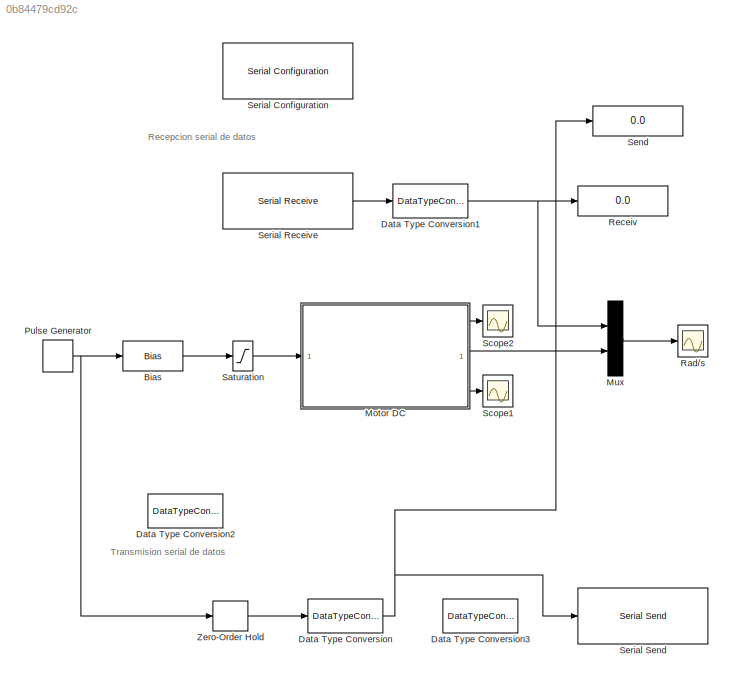
MODEL slx_0b84479cd92c
KIND model
CONFIG AbsTol = auto
CONFIG EnableMultiTasking = off
CONFIG FixedStep = auto
CONFIG MaxStep = auto
CONFIG MinStep = auto
CONFIG RelTol = 1e-3
CONFIG SampleTimeConstraint = Unconstrained
CONFIG SolverName = VariableStepAuto
CONFIG StartTime = 0.0
CONFIG StopTime = 10
BLOCK [Bias] Bias
  Bias = -8+Vm
  SaturateOnIntegerOverflow = off
BLOCK [DataTypeConversion] Data Type Conversion
  OutDataTypeStr = single
  RndMeth = Floor
  SaturateOnIntegerOverflow = off
BLOCK [DataTypeConversion] Data Type Conversion1
  OutDataTypeStr = double
  RndMeth = Floor
  SaturateOnIntegerOverflow = off
BLOCK [DataTypeConversion] Data Type Conversion2
  RndMeth = Floor
  SaturateOnIntegerOverflow = off
BLOCK [DataTypeConversion] Data Type Conversion3
  OutDataTypeStr = uint32
  RndMeth = Floor
  SaturateOnIntegerOverflow = off
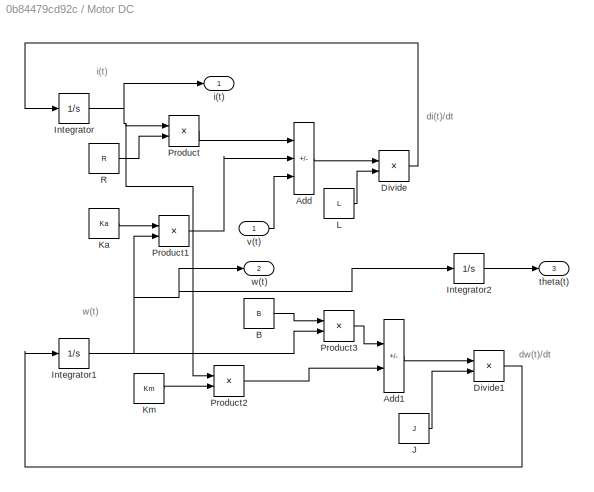
BLOCK [SubSystem] Motor DC
BLOCK [Sum] Motor DC/Add
  IconShape = rectangular
  Inputs = --+
BLOCK [Sum] Motor DC/Add1
  IconShape = rectangular
  Inputs = -+
BLOCK [Constant] Motor DC/B
  Value = B
BLOCK [Product] Motor DC/Divide
  Inputs = */
BLOCK [Product] Motor DC/Divide1
  Inputs = */
BLOCK [Integrator] Motor DC/Integrator
BLOCK [Integrator] Motor DC/Integrator1
BLOCK [Integrator] Motor DC/Integrator2
BLOCK [Constant] Motor DC/J
  Value = J
BLOCK [Constant] Motor DC/Ka
  Value = Ka
BLOCK [Constant] Motor DC/Km
  Value = Km
BLOCK [Constant] Motor DC/L
  Value = L
BLOCK [Product] Motor DC/Product
BLOCK [Product] Motor DC/Product1
BLOCK [Product] Motor DC/Product2
BLOCK [Product] Motor DC/Product3
BLOCK [Constant] Motor DC/R
  Value = R
BLOCK [Outport] Motor DC/i(t)
  VectorParamsAs1DForOutWhenUnconnected = off
BLOCK [Outport] Motor DC/theta(t)
  Port = 3
  VectorParamsAs1DForOutWhenUnconnected = off
BLOCK [Inport] Motor DC/v(t)
BLOCK [Outport] Motor DC/w(t)
  Port = 2
  VectorParamsAs1DForOutWhenUnconnected = off
BLOCK [Mux] Mux
  DisplayOption = bar
  Inputs = 2
BLOCK [DiscretePulseGenerator] Pulse Generator
  Amplitude = 8
  Period = 4
  PhaseDelay = 2
  PulseType = Time based
  PulseWidth = 50
BLOCK [Scope] Rad//s
  Floating = off
  NumInputPorts = 1
  ScopeSpecificationString = Simulink.scopes.TimeScopeBlockCfg('CurrentConfiguration', extmgr.ConfigurationSet(extmgr.Configuration('Core','General UI',true),extmgr.Configuration('Core','Source UI',true),extmgr.Configuration('Sources','WiredSimulink',true,'DataLoggingVariableName','ScopeData1'),extmgr.Configuration('Visuals','Time Domain',true,'SerializedDisplays',{struct('MinYLimReal','-14.74016','MaxYLimReal','59.1731','YLa...<+1834ch>
BLOCK [Display] Receiv
  Decimation = 1
BLOCK [Saturate] Saturation
  LowerLimit = 0
  UpperLimit = 12
BLOCK [Scope] Scope1
  Floating = off
  NumInputPorts = 1
  ScopeSpecificationString = Simulink.scopes.TimeScopeBlockCfg('CurrentConfiguration', extmgr.ConfigurationSet(extmgr.Configuration('Core','General UI',true),extmgr.Configuration('Core','Source UI',true),extmgr.Configuration('Sources','WiredSimulink',true,'DataLoggingVariableName','ScopeData1'),extmgr.Configuration('Visuals','Time Domain',true,'SerializedDisplays',{struct('MinYLimReal','-0.02451','MaxYLimReal','0.20996','YLab...<+1802ch>
BLOCK [Scope] Scope2
  Floating = off
  NumInputPorts = 1
  ScopeSpecificationString = Simulink.scopes.TimeScopeBlockCfg('CurrentConfiguration', extmgr.ConfigurationSet(extmgr.Configuration('Core','General UI',true),extmgr.Configuration('Core','Source UI',true),extmgr.Configuration('Sources','WiredSimulink',true,'DataLoggingVariableName','ScopeData1'),extmgr.Configuration('Visuals','Time Domain',true,'SerializedDisplays',{struct('MinYLimReal','-0.02451','MaxYLimReal','0.20996','YLab...<+1802ch>
BLOCK [Display] Send
  Decimation = 1
BLOCK [Reference] Serial Configuration  REF=instrumentseriallib/Serial Configuration
  LibrarySourceBlock = instrumentlib/Serial Configuration
  Priority = -200000
  SourceBlock = instrumentseriallib/Serial Configuration
  SourceType = system.SerialConfiguration
BLOCK [Reference] Serial Receive  REF=instrumentseriallib/Serial Receive
  LibrarySourceBlock = instrumentlib/Serial Receive
  Priority = 1
  SourceBlock = instrumentseriallib/Serial Receive
  SourceType = system.SerialReceive
BLOCK [Reference] Serial Send  REF=instrumentseriallib/Serial Send
  LibrarySourceBlock = instrumentlib/Serial Send
  Priority = 1
  SourceBlock = instrumentseriallib/Serial Send
  SourceType = system.SerialSend
BLOCK [ZeroOrderHold] Zero-Order Hold
  SampleTime = 0.05
ANNOTATION (root): Recepcion serial de datos
ANNOTATION (root): Transmision serial de datos
ANNOTATION Motor DC: di(t)/dt
ANNOTATION Motor DC: dw(t)/dt
ANNOTATION Motor DC: i(t)
ANNOTATION Motor DC: w(t)
LINE Bias:1 -> Saturation:1
NET Data Type Conversion1:1 -> Mux:1, Receiv:1
NET Data Type Conversion:1 -> Send:1, Serial Send:1
LINE Motor DC/Add1:1 -> Motor DC/Divide1:1
LINE Motor DC/Add:1 -> Motor DC/Divide:1
LINE Motor DC/B:1 -> Motor DC/Product3:1
LINE Motor DC/Divide1:1 -> Motor DC/Integrator1:1
LINE Motor DC/Divide:1 -> Motor DC/Integrator:1
NET Motor DC/Integrator1:1 -> Motor DC/Integrator2:1, Motor DC/Product1:2, Motor DC/Product3:2, Motor DC/w(t):1
LINE Motor DC/Integrator2:1 -> Motor DC/theta(t):1
NET Motor DC/Integrator:1 -> Motor DC/Product2:1, Motor DC/Product:1, Motor DC/i(t):1
LINE Motor DC/J:1 -> Motor DC/Divide1:2
LINE Motor DC/Ka:1 -> Motor DC/Product1:1
LINE Motor DC/Km:1 -> Motor DC/Product2:2
LINE Motor DC/L:1 -> Motor DC/Divide:2
LINE Motor DC/Product1:1 -> Motor DC/Add:2
LINE Motor DC/Product2:1 -> Motor DC/Add1:2
LINE Motor DC/Product3:1 -> Motor DC/Add1:1
LINE Motor DC/Product:1 -> Motor DC/Add:1
LINE Motor DC/R:1 -> Motor DC/Product:2
LINE Motor DC/v(t):1 -> Motor DC/Add:3
LINE Motor DC:1 -> Scope2:1
LINE Motor DC:2 -> Mux:2
LINE Motor DC:3 -> Scope1:1
LINE Mux:1 -> Rad//s:1
NET Pulse Generator:1 -> Bias:1, Zero-Order Hold:1
LINE Saturation:1 -> Motor DC:1
LINE Serial Receive:1 -> Data Type Conversion1:1
LINE Zero-Order Hold:1 -> Data Type Conversion:1
note: NET lines group one-source signal fan-out (src -> all destinations, sorted); 1:1 wires keep LINE
